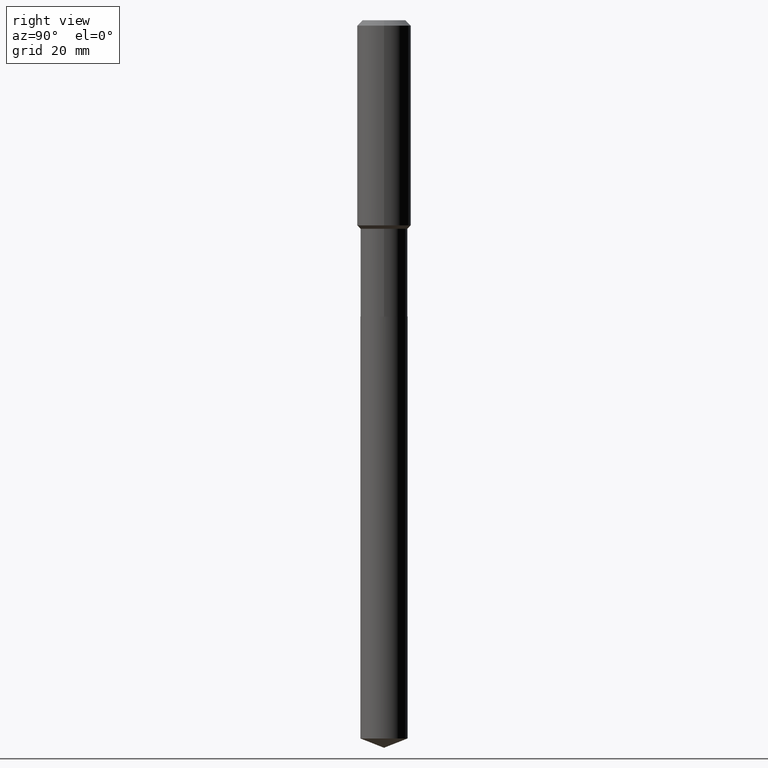
[diagram: clean part render]
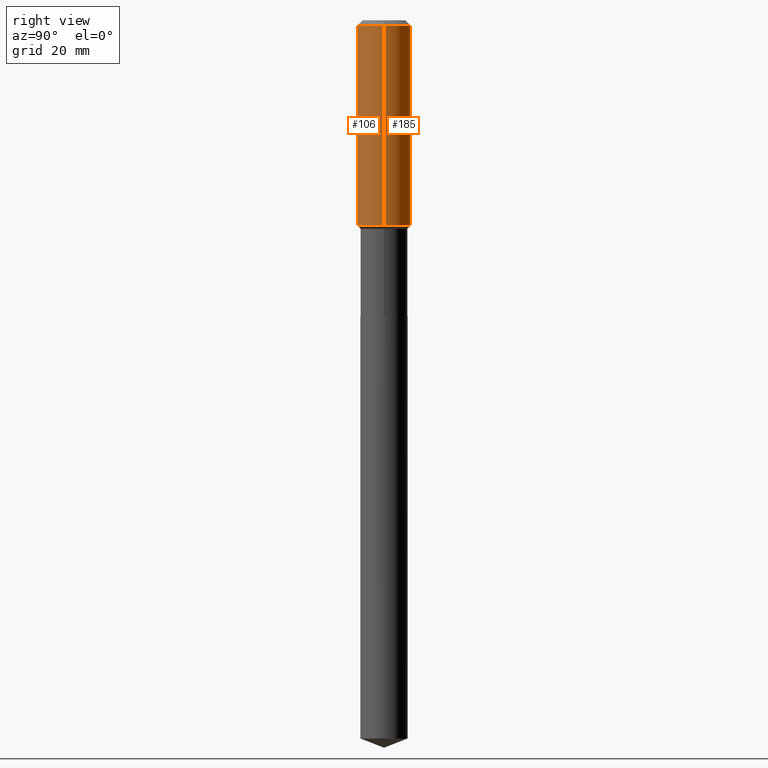
[diagram: same view with one multi-face feature highlighted, each face labeled with its STEP entity id]
A machine part, right view. The highlighted faces form ONE feature: a constant-radius fillet chain: 2 tangent blend faces with common blend radius 5.9995 mm. The faces share edges in the B-rep.
Their STEP definitions:
[1] entity #106 (Cylinder):
#11 = CARTESIAN_POINT ( 'NONE',  ( -0.2361999999999999933, -1.543357719111991223E-15, -0.04724000000000027483 ) ) ;
#37 = EDGE_CURVE ( 'NONE', #385, #77, #303, .T. ) ;
#39 = EDGE_CURVE ( 'NONE', #339, #385, #110, .T. ) ;
#51 = DIRECTION ( 'NONE',  ( -2.445468806185136597E-29, 3.491481338843145583E-15, 1.000000000000000000 ) ) ;
#54 = DIRECTION ( 'NONE',  ( -2.445468806185136877E-29, 3.491481338843145188E-15, 1.000000000000000000 ) ) ;
#77 = VERTEX_POINT ( 'NONE', #299 ) ;
#82 = CYLINDRICAL_SURFACE ( 'NONE', #251, 0.2362000000000001043 ) ;
#88 = EDGE_LOOP ( 'NONE', ( #281, #420, #335, #215 ) ) ;
#106 = ADVANCED_FACE ( 'NONE', ( #262 ), #82, .T. ) ;
#110 = LINE ( 'NONE', #356, #474 ) ;
#112 = DIRECTION ( 'NONE',  ( 1.000000000000000000, -6.982962677686266711E-15, 0.000000000000000000 ) ) ;
#119 = EDGE_CURVE ( 'NONE', #339, #352, #350, .T. ) ;
#126 = DIRECTION ( 'NONE',  ( 1.000000000000000000, -6.982962677686266711E-15, 0.000000000000000000 ) ) ;
#144 = CARTESIAN_POINT ( 'NONE',  ( 1.155239464041865331E-30, -1.649375784469511612E-16, -0.04724000000000027483 ) ) ;
#148 = VECTOR ( 'NONE', #54, 39.37007874015748143 ) ;
#165 = CARTESIAN_POINT ( 'NONE',  ( 0.2362000000000001043, -1.649375784469496920E-15, 1.151752954443000508E-29 ) ) ;
#197 = AXIS2_PLACEMENT_3D ( 'NONE', #144, #284, #112 ) ;
#215 = ORIENTED_EDGE ( 'NONE', *, *, #37, .F. ) ;
#218 = DIRECTION ( 'NONE',  ( -2.445468806185136877E-29, 3.491481338843145188E-15, 1.000000000000000000 ) ) ;
#220 = DIRECTION ( 'NONE',  ( 1.000000000000000000, -6.982962677686266711E-15, 4.876176775795935793E-29 ) ) ;
#230 = CARTESIAN_POINT ( 'NONE',  ( 4.397442007282113695E-29, -6.278381743507746292E-15, -1.798200000000000465 ) ) ;
#251 = AXIS2_PLACEMENT_3D ( 'NONE', #419, #51, #220 ) ;
#262 = FACE_OUTER_BOUND ( 'NONE', #88, .T. ) ;
#264 = LINE ( 'NONE', #165, #148 ) ;
#281 = ORIENTED_EDGE ( 'NONE', *, *, #39, .F. ) ;
#284 = DIRECTION ( 'NONE',  ( -2.445468806185136597E-29, 3.491481338843145583E-15, 1.000000000000000000 ) ) ;
#298 = CARTESIAN_POINT ( 'NONE',  ( 0.2362000000000002153, -7.927757527977242818E-15, -1.798200000000000465 ) ) ;
#299 = CARTESIAN_POINT ( 'NONE',  ( 0.2361999999999999933, -1.814313362916447440E-15, -0.04724000000000027483 ) ) ;
#301 = DIRECTION ( 'NONE',  ( -2.445468806185136597E-29, 3.491481338843145583E-15, 1.000000000000000000 ) ) ;
#303 = CIRCLE ( 'NONE', #197, 0.2361999999999999933 ) ;
#335 = ORIENTED_EDGE ( 'NONE', *, *, #406, .T. ) ;
#339 = VERTEX_POINT ( 'NONE', #459 ) ;
#350 = CIRCLE ( 'NONE', #390, 0.2362000000000002153 ) ;
#352 = VERTEX_POINT ( 'NONE', #298 ) ;
#356 = CARTESIAN_POINT ( 'NONE',  ( -0.2362000000000001043, 1.678301941865357380E-15, -1.161852468318209317E-29 ) ) ;
#385 = VERTEX_POINT ( 'NONE', #11 ) ;
#390 = AXIS2_PLACEMENT_3D ( 'NONE', #230, #301, #126 ) ;
#406 = EDGE_CURVE ( 'NONE', #352, #77, #264, .T. ) ;
#419 = CARTESIAN_POINT ( 'NONE',  ( 0.000000000000000000, 0.000000000000000000, 0.000000000000000000 ) ) ;
#420 = ORIENTED_EDGE ( 'NONE', *, *, #119, .T. ) ;
#459 = CARTESIAN_POINT ( 'NONE',  ( -0.2362000000000002153, -4.600079801642388321E-15, -1.798200000000000465 ) ) ;
#474 = VECTOR ( 'NONE', #218, 39.37007874015748143 ) ;
[2] entity #185 (Cylinder):
#11 = CARTESIAN_POINT ( 'NONE',  ( -0.2361999999999999933, -1.543357719111991223E-15, -0.04724000000000027483 ) ) ;
#20 = ORIENTED_EDGE ( 'NONE', *, *, #174, .F. ) ;
#33 = AXIS2_PLACEMENT_3D ( 'NONE', #432, #235, #97 ) ;
#39 = EDGE_CURVE ( 'NONE', #339, #385, #110, .T. ) ;
#54 = DIRECTION ( 'NONE',  ( -2.445468806185136877E-29, 3.491481338843145188E-15, 1.000000000000000000 ) ) ;
#57 = EDGE_CURVE ( 'NONE', #352, #339, #271, .T. ) ;
#75 = ORIENTED_EDGE ( 'NONE', *, *, #406, .F. ) ;
#77 = VERTEX_POINT ( 'NONE', #299 ) ;
#97 = DIRECTION ( 'NONE',  ( 1.000000000000000000, -6.982962677686266711E-15, 0.000000000000000000 ) ) ;
#99 = FACE_OUTER_BOUND ( 'NONE', #266, .T. ) ;
#107 = CARTESIAN_POINT ( 'NONE',  ( 4.397442007282113695E-29, -6.278381743507746292E-15, -1.798200000000000465 ) ) ;
#110 = LINE ( 'NONE', #356, #474 ) ;
#130 = DIRECTION ( 'NONE',  ( 1.000000000000000000, -6.982962677686266711E-15, 4.876176775795935793E-29 ) ) ;
#148 = VECTOR ( 'NONE', #54, 39.37007874015748143 ) ;
#165 = CARTESIAN_POINT ( 'NONE',  ( 0.2362000000000001043, -1.649375784469496920E-15, 1.151752954443000508E-29 ) ) ;
#174 = EDGE_CURVE ( 'NONE', #77, #385, #458, .T. ) ;
#185 = ADVANCED_FACE ( 'NONE', ( #99 ), #244, .T. ) ;
#200 = DIRECTION ( 'NONE',  ( -2.445468806185136597E-29, 3.491481338843145583E-15, 1.000000000000000000 ) ) ;
#218 = DIRECTION ( 'NONE',  ( -2.445468806185136877E-29, 3.491481338843145188E-15, 1.000000000000000000 ) ) ;
#235 = DIRECTION ( 'NONE',  ( -2.445468806185136597E-29, 3.491481338843145583E-15, 1.000000000000000000 ) ) ;
#242 = CARTESIAN_POINT ( 'NONE',  ( 0.000000000000000000, 0.000000000000000000, 0.000000000000000000 ) ) ;
#244 = CYLINDRICAL_SURFACE ( 'NONE', #311, 0.2362000000000001043 ) ;
#252 = DIRECTION ( 'NONE',  ( 1.000000000000000000, -6.982962677686266711E-15, 0.000000000000000000 ) ) ;
#264 = LINE ( 'NONE', #165, #148 ) ;
#266 = EDGE_LOOP ( 'NONE', ( #409, #326, #20, #75 ) ) ;
#271 = CIRCLE ( 'NONE', #467, 0.2362000000000002153 ) ;
#298 = CARTESIAN_POINT ( 'NONE',  ( 0.2362000000000002153, -7.927757527977242818E-15, -1.798200000000000465 ) ) ;
#299 = CARTESIAN_POINT ( 'NONE',  ( 0.2361999999999999933, -1.814313362916447440E-15, -0.04724000000000027483 ) ) ;
#311 = AXIS2_PLACEMENT_3D ( 'NONE', #242, #200, #130 ) ;
#326 = ORIENTED_EDGE ( 'NONE', *, *, #39, .T. ) ;
#339 = VERTEX_POINT ( 'NONE', #459 ) ;
#352 = VERTEX_POINT ( 'NONE', #298 ) ;
#356 = CARTESIAN_POINT ( 'NONE',  ( -0.2362000000000001043, 1.678301941865357380E-15, -1.161852468318209317E-29 ) ) ;
#365 = DIRECTION ( 'NONE',  ( -2.445468806185136597E-29, 3.491481338843145583E-15, 1.000000000000000000 ) ) ;
#385 = VERTEX_POINT ( 'NONE', #11 ) ;
#406 = EDGE_CURVE ( 'NONE', #352, #77, #264, .T. ) ;
#409 = ORIENTED_EDGE ( 'NONE', *, *, #57, .T. ) ;
#432 = CARTESIAN_POINT ( 'NONE',  ( 1.155239464041865331E-30, -1.649375784469511612E-16, -0.04724000000000027483 ) ) ;
#458 = CIRCLE ( 'NONE', #33, 0.2361999999999999933 ) ;
#459 = CARTESIAN_POINT ( 'NONE',  ( -0.2362000000000002153, -4.600079801642388321E-15, -1.798200000000000465 ) ) ;
#467 = AXIS2_PLACEMENT_3D ( 'NONE', #107, #365, #252 ) ;
#474 = VECTOR ( 'NONE', #218, 39.37007874015748143 ) ;